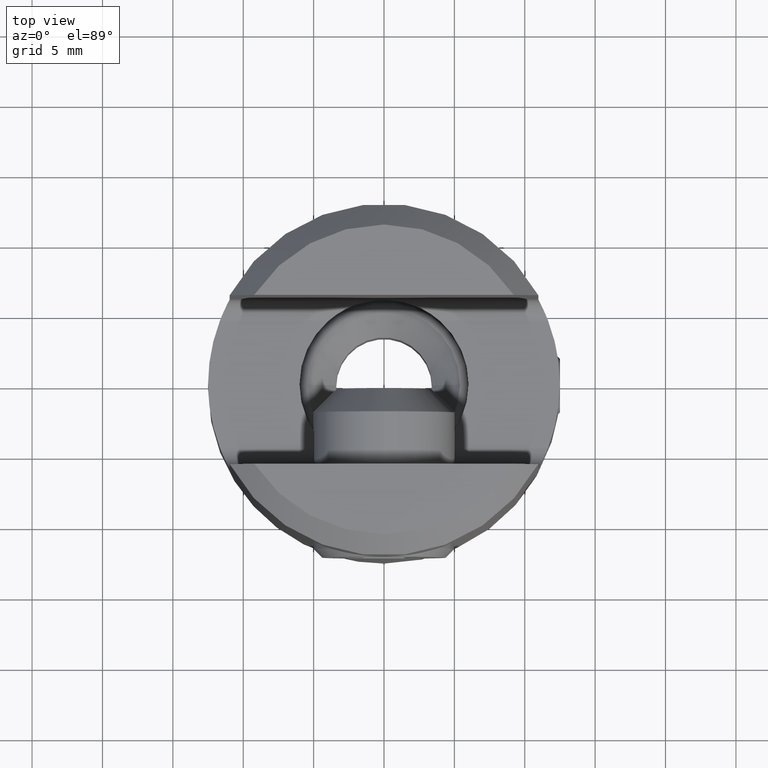
[diagram: clean part render]
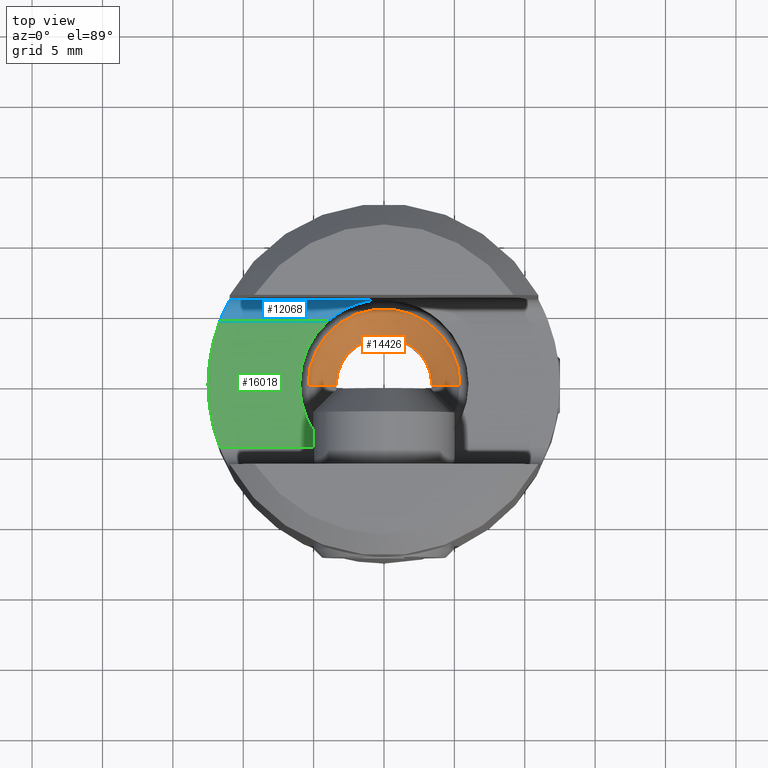
[diagram: same view with three faces highlighted in distinct colors, each labeled with its STEP entity id]
A machine part, top view with three faces highlighted in distinct colors.
Their STEP definitions:

[orange] entity #14426 — the highlighted conical surface has half-angle 45 deg.
#120 = LINE ( 'NONE', #12263, #13485 ) ;
#1706 = VERTEX_POINT ( 'NONE', #17645 ) ;
#2958 = ORIENTED_EDGE ( 'NONE', *, *, #13245, .F. ) ;
#5023 = VERTEX_POINT ( 'NONE', #7340 ) ;
#6390 = CARTESIAN_POINT ( 'NONE',  ( 0.000000000000000000, 0.000000000000000000, 3.749999999999997335 ) ) ;
#6521 = VERTEX_POINT ( 'NONE', #16989 ) ;
#7340 = CARTESIAN_POINT ( 'NONE',  ( -5.400000000000005684, 6.613092715395714369E-16, 5.749999999999997335 ) ) ;
#8348 = EDGE_CURVE ( 'NONE', #6521, #5023, #18417, .T. ) ;
#12263 = CARTESIAN_POINT ( 'NONE',  ( 5.400000000000005684, 0.000000000000000000, 5.749999999999997335 ) ) ;
#12441 = AXIS2_PLACEMENT_3D ( 'NONE', #6390, #31482, #13760 ) ;
#13035 = DIRECTION ( 'NONE',  ( -0.000000000000000000, -0.000000000000000000, 1.000000000000000000 ) ) ;
#13245 = EDGE_CURVE ( 'NONE', #1706, #23680, #24624, .T. ) ;
#13378 = VECTOR ( 'NONE', #15585, 1000.000000000000000 ) ;
#13485 = VECTOR ( 'NONE', #27518, 1000.000000000000000 ) ;
#13760 = DIRECTION ( 'NONE',  ( 1.000000000000000000, 0.000000000000000000, 0.000000000000000000 ) ) ;
#14020 = ORIENTED_EDGE ( 'NONE', *, *, #16436, .T. ) ;
#14426 = ADVANCED_FACE ( 'NONE', ( #20281 ), #15132, .F. ) ;
#15031 = ORIENTED_EDGE ( 'NONE', *, *, #8348, .T. ) ;
#15132 = CONICAL_SURFACE ( 'NONE', #18976, 5.400000000000005684, 0.7853981633974498333 ) ;
#15409 = EDGE_LOOP ( 'NONE', ( #30413, #2958, #14020, #15031 ) ) ;
#15557 = DIRECTION ( 'NONE',  ( 1.000000000000000000, 0.000000000000000000, 0.000000000000000000 ) ) ;
#15585 = DIRECTION ( 'NONE',  ( -0.7071067811865486830, 8.659560562354947649E-17, 0.7071067811865464625 ) ) ;
#16436 = EDGE_CURVE ( 'NONE', #1706, #6521, #120, .T. ) ;
#16989 = CARTESIAN_POINT ( 'NONE',  ( 5.400000000000005684, 0.000000000000000000, 5.749999999999997335 ) ) ;
#17645 = CARTESIAN_POINT ( 'NONE',  ( 3.399999999999999467, 0.000000000000000000, 3.749999999999997335 ) ) ;
#17851 = CARTESIAN_POINT ( 'NONE',  ( -3.399999999999999467, 5.388445916248357957E-16, 3.749999999999997335 ) ) ;
#18417 = CIRCLE ( 'NONE', #21698, 5.400000000000005684 ) ;
#18976 = AXIS2_PLACEMENT_3D ( 'NONE', #25335, #30297, #15557 ) ;
#20281 = FACE_OUTER_BOUND ( 'NONE', #15409, .T. ) ;
#21260 = LINE ( 'NONE', #25802, #13378 ) ;
#21698 = AXIS2_PLACEMENT_3D ( 'NONE', #25568, #13035, #30639 ) ;
#23680 = VERTEX_POINT ( 'NONE', #17851 ) ;
#24624 = CIRCLE ( 'NONE', #12441, 3.399999999999999467 ) ;
#25335 = CARTESIAN_POINT ( 'NONE',  ( 0.000000000000000000, 0.000000000000000000, 5.749999999999997335 ) ) ;
#25568 = CARTESIAN_POINT ( 'NONE',  ( 0.000000000000000000, 0.000000000000000000, 5.749999999999997335 ) ) ;
#25802 = CARTESIAN_POINT ( 'NONE',  ( -5.400000000000005684, 6.613092715395714369E-16, 5.749999999999997335 ) ) ;
#27518 = DIRECTION ( 'NONE',  ( 0.7071067811865486830, 0.000000000000000000, 0.7071067811865464625 ) ) ;
#30297 = DIRECTION ( 'NONE',  ( -0.000000000000000000, -0.000000000000000000, 1.000000000000000000 ) ) ;
#30413 = ORIENTED_EDGE ( 'NONE', *, *, #31816, .F. ) ;
#30639 = DIRECTION ( 'NONE',  ( 1.000000000000000000, 0.000000000000000000, 0.000000000000000000 ) ) ;
#31482 = DIRECTION ( 'NONE',  ( -0.000000000000000000, -0.000000000000000000, 1.000000000000000000 ) ) ;
#31816 = EDGE_CURVE ( 'NONE', #23680, #5023, #21260, .T. ) ;

[blue] entity #12068 — the highlighted cylindrical surface (edge-blend (fillet) strip) has radius 1.5 mm, axis along (1, 0, 0).
#283 = ORIENTED_EDGE ( 'NONE', *, *, #3916, .F. ) ;
#496 = CARTESIAN_POINT ( 'NONE',  ( -0.3457592274710205027, 5.992519182229584906, -3.672879875943233952 ) ) ;
#1646 = B_SPLINE_CURVE_WITH_KNOTS ( 'NONE', 3,
 ( #11290, #18961, #3876, #23595, #26518, #16309, #8532, #3549, #21396, #26097, #28850, #11170, #11500, #23809 ),
 .UNSPECIFIED., .F., .F.,
 ( 4, 2, 2, 2, 2, 2, 4 ),
 ( 0.000000000000000000, 0.0006151161243087470767, 0.001230232248617494153, 0.001537790310771869210, 0.001845348372926244483, 0.002152906435080619539, 0.002460464497234994812 ),
 .UNSPECIFIED. ) ;
#2131 = B_SPLINE_CURVE_WITH_KNOTS ( 'NONE', 3,
 ( #8215, #22414, #24908, #9873, #3131, #4872, #28091, #13042, #30649, #496, #23174, #3650 ),
 .UNSPECIFIED., .F., .F.,
 ( 4, 2, 2, 2, 2, 4 ),
 ( 1.939479807224432123E-18, 0.001154365541291740892, 0.002308731082583479616, 0.003463096623875218556, 0.004040279394521088460, 0.004617462165166957497 ),
 .UNSPECIFIED. ) ;
#2455 = EDGE_CURVE ( 'NONE', #14054, #15091, #9603, .T. ) ;
#3131 = CARTESIAN_POINT ( 'NONE',  ( -2.389261835749179497, 5.515299165714085738, -4.619919010404819559 ) ) ;
#3549 = CARTESIAN_POINT ( 'NONE',  ( -11.08050474110093297, 5.785881309646044635, -4.278563079836198213 ) ) ;
#3650 = CARTESIAN_POINT ( 'NONE',  ( 0.000000000000000000, 6.000000000000000000, -3.499999999999999556 ) ) ;
#3876 = CARTESIAN_POINT ( 'NONE',  ( -11.50910958810004381, 4.881422430154224834, -4.963323838012638767 ) ) ;
#3916 = EDGE_CURVE ( 'NONE', #12203, #14054, #1646, .T. ) ;
#4872 = CARTESIAN_POINT ( 'NONE',  ( -1.719342870158561798, 5.759423330675472741, -4.336004700893561825 ) ) ;
#6968 = CARTESIAN_POINT ( 'NONE',  ( -3.968626966596886962, 4.500000000000000888, -4.999999999999999112 ) ) ;
#8215 = CARTESIAN_POINT ( 'NONE',  ( -3.968626966596886962, 4.500000000000000888, -4.999999999999999112 ) ) ;
#8532 = CARTESIAN_POINT ( 'NONE',  ( -11.13854122013244741, 5.673350626770930383, -4.439627329550028811 ) ) ;
#9224 = DIRECTION ( 'NONE',  ( 0.000000000000000000, 0.000000000000000000, -1.000000000000000000 ) ) ;
#9603 = LINE ( 'NONE', #17701, #20984 ) ;
#9873 = CARTESIAN_POINT ( 'NONE',  ( -2.718072507772709923, 5.362287015771874721, -4.745848409250905675 ) ) ;
#11170 = CARTESIAN_POINT ( 'NONE',  ( -10.97193991948220138, 5.988915443947516515, -3.708765188068190000 ) ) ;
#11290 = CARTESIAN_POINT ( 'NONE',  ( -11.66190378969060149, 4.500000000000000888, -4.999999999999997335 ) ) ;
#11500 = CARTESIAN_POINT ( 'NONE',  ( -10.96585609973065445, 6.000000000000000000, -3.604328670593471173 ) ) ;
#12068 = ADVANCED_FACE ( 'NONE', ( #26161 ), #18694, .F. ) ;
#12184 = CARTESIAN_POINT ( 'NONE',  ( 0.000000000000000000, 4.500000000000000888, -4.999999999999999112 ) ) ;
#12203 = VERTEX_POINT ( 'NONE', #31972 ) ;
#12715 = ORIENTED_EDGE ( 'NONE', *, *, #2455, .F. ) ;
#12866 = AXIS2_PLACEMENT_3D ( 'NONE', #24405, #21871, #9224 ) ;
#13042 = CARTESIAN_POINT ( 'NONE',  ( -0.8615478868297075099, 5.940372438374049935, -3.927871978965056243 ) ) ;
#13070 = CARTESIAN_POINT ( 'NONE',  ( -10.96585609973065623, 6.000000000000000000, -3.499999999999996003 ) ) ;
#14054 = VERTEX_POINT ( 'NONE', #13070 ) ;
#15091 = VERTEX_POINT ( 'NONE', #25314 ) ;
#16309 = CARTESIAN_POINT ( 'NONE',  ( -11.17064239995578490, 5.610069605577518992, -4.513525175028263448 ) ) ;
#16334 = VERTEX_POINT ( 'NONE', #6968 ) ;
#17214 = DIRECTION ( 'NONE',  ( -1.000000000000000000, -0.000000000000000000, 0.000000000000000000 ) ) ;
#17701 = CARTESIAN_POINT ( 'NONE',  ( -10.96585609973065623, 6.000000000000000000, -3.499999999999996003 ) ) ;
#18694 = CYLINDRICAL_SURFACE ( 'NONE', #12866, 1.499999999999999556 ) ;
#18961 = CARTESIAN_POINT ( 'NONE',  ( -11.58701421025937783, 4.694078904483859560, -4.999999999999999112 ) ) ;
#20984 = VECTOR ( 'NONE', #22884, 1000.000000000000000 ) ;
#21160 = EDGE_LOOP ( 'NONE', ( #32423, #21508, #12715, #283 ) ) ;
#21396 = CARTESIAN_POINT ( 'NONE',  ( -11.05428633293599638, 5.835651326023887364, -4.190079855651604568 ) ) ;
#21508 = ORIENTED_EDGE ( 'NONE', *, *, #28378, .T. ) ;
#21871 = DIRECTION ( 'NONE',  ( 1.000000000000000000, 0.000000000000000000, -0.000000000000000000 ) ) ;
#22414 = CARTESIAN_POINT ( 'NONE',  ( -3.675905225379418440, 4.758156310201076877, -4.999999999999995559 ) ) ;
#22884 = DIRECTION ( 'NONE',  ( 1.000000000000000000, 0.000000000000000000, -0.000000000000000000 ) ) ;
#22958 = VECTOR ( 'NONE', #17214, 1000.000000000000000 ) ;
#23174 = CARTESIAN_POINT ( 'NONE',  ( -0.1720828153580829523, 6.000000000000001776, -3.586041235596761911 ) ) ;
#23595 = CARTESIAN_POINT ( 'NONE',  ( -11.35153951942210426, 5.237407659473080734, -4.820238489391681647 ) ) ;
#23809 = CARTESIAN_POINT ( 'NONE',  ( -10.96585609973065623, 6.000000000000000000, -3.499999999999996003 ) ) ;
#24405 = CARTESIAN_POINT ( 'NONE',  ( -10.96585609973065623, 4.500000000000000888, -3.499999999999996003 ) ) ;
#24908 = CARTESIAN_POINT ( 'NONE',  ( -3.367710864229600531, 4.980016438926222477, -4.937101727353483405 ) ) ;
#25314 = CARTESIAN_POINT ( 'NONE',  ( 0.000000000000000000, 6.000000000000000000, -3.499999999999999556 ) ) ;
#26097 = CARTESIAN_POINT ( 'NONE',  ( -11.01148464564136731, 5.916018815746308057, -4.005039983900222644 ) ) ;
#26161 = FACE_OUTER_BOUND ( 'NONE', #21160, .T. ) ;
#26518 = CARTESIAN_POINT ( 'NONE',  ( -11.27476220471208990, 5.399469201287617537, -4.716102953908867690 ) ) ;
#28091 = CARTESIAN_POINT ( 'NONE',  ( -1.375867837165913432, 5.850482507129773246, -4.176155133368659733 ) ) ;
#28332 = EDGE_CURVE ( 'NONE', #16334, #12203, #30425, .T. ) ;
#28378 = EDGE_CURVE ( 'NONE', #16334, #15091, #2131, .T. ) ;
#28850 = CARTESIAN_POINT ( 'NONE',  ( -10.99481255590329098, 5.946820213528531518, -3.908856176056842546 ) ) ;
#30425 = LINE ( 'NONE', #12184, #22958 ) ;
#30649 = CARTESIAN_POINT ( 'NONE',  ( -0.6899298148956094501, 5.962703450892806067, -3.843510662972326131 ) ) ;
#31972 = CARTESIAN_POINT ( 'NONE',  ( -11.66190378969060149, 4.500000000000000888, -4.999999999999997335 ) ) ;
#32423 = ORIENTED_EDGE ( 'NONE', *, *, #28332, .F. ) ;

[green] entity #16018 — the highlighted planar face has unit normal (0, 0, 1).
#186 = ORIENTED_EDGE ( 'NONE', *, *, #29980, .F. ) ;
#377 = ORIENTED_EDGE ( 'NONE', *, *, #8824, .F. ) ;
#458 = CARTESIAN_POINT ( 'NONE',  ( 0.000000000000000000, 0.000000000000000000, -4.999999999999999112 ) ) ;
#934 = DIRECTION ( 'NONE',  ( -0.000000000000000000, -0.000000000000000000, -1.000000000000000000 ) ) ;
#1084 = CIRCLE ( 'NONE', #26898, 12.50000000000000000 ) ;
#2368 = ORIENTED_EDGE ( 'NONE', *, *, #21060, .T. ) ;
#2515 = VERTEX_POINT ( 'NONE', #26450 ) ;
#2859 = EDGE_LOOP ( 'NONE', ( #19412, #26356, #13273, #377, #2368, #186 ) ) ;
#2957 = VERTEX_POINT ( 'NONE', #7666 ) ;
#3126 = AXIS2_PLACEMENT_3D ( 'NONE', #5465, #30665, #15474 ) ;
#3469 = DIRECTION ( 'NONE',  ( 1.000000000000000000, 0.000000000000000000, 0.000000000000000000 ) ) ;
#4179 = AXIS2_PLACEMENT_3D ( 'NONE', #458, #17959, #27949 ) ;
#5465 = CARTESIAN_POINT ( 'NONE',  ( 0.000000000000000000, 0.000000000000000000, -4.999999999999999112 ) ) ;
#5794 = CARTESIAN_POINT ( 'NONE',  ( 0.000000000000000000, 0.000000000000000000, -4.999999999999997335 ) ) ;
#5847 = LINE ( 'NONE', #6323, #31841 ) ;
#6323 = CARTESIAN_POINT ( 'NONE',  ( 0.000000000000000000, -4.500000000000000888, -4.999999999999999112 ) ) ;
#6968 = CARTESIAN_POINT ( 'NONE',  ( -3.968626966596886962, 4.500000000000000888, -4.999999999999999112 ) ) ;
#7407 = CIRCLE ( 'NONE', #3126, 6.000000000000000888 ) ;
#7666 = CARTESIAN_POINT ( 'NONE',  ( -11.66190378969060149, -4.500000000000000888, -4.999999999999997335 ) ) ;
#8000 = EDGE_CURVE ( 'NONE', #16334, #10510, #7407, .T. ) ;
#8824 = EDGE_CURVE ( 'NONE', #2957, #21596, #1084, .T. ) ;
#10108 = PLANE ( 'NONE',  #32466 ) ;
#10225 = EDGE_CURVE ( 'NONE', #21596, #12203, #28572, .T. ) ;
#10510 = VERTEX_POINT ( 'NONE', #22613 ) ;
#11101 = CIRCLE ( 'NONE', #4179, 6.000000000000000888 ) ;
#12184 = CARTESIAN_POINT ( 'NONE',  ( 0.000000000000000000, 4.500000000000000888, -4.999999999999999112 ) ) ;
#12203 = VERTEX_POINT ( 'NONE', #31972 ) ;
#13273 = ORIENTED_EDGE ( 'NONE', *, *, #10225, .F. ) ;
#15474 = DIRECTION ( 'NONE',  ( 1.000000000000000000, 0.000000000000000000, 0.000000000000000000 ) ) ;
#16018 = ADVANCED_FACE ( 'NONE', ( #19841 ), #10108, .T. ) ;
#16334 = VERTEX_POINT ( 'NONE', #6968 ) ;
#17214 = DIRECTION ( 'NONE',  ( -1.000000000000000000, -0.000000000000000000, 0.000000000000000000 ) ) ;
#17959 = DIRECTION ( 'NONE',  ( 0.000000000000000000, 0.000000000000000000, 1.000000000000000000 ) ) ;
#19412 = ORIENTED_EDGE ( 'NONE', *, *, #8000, .F. ) ;
#19841 = FACE_OUTER_BOUND ( 'NONE', #2859, .T. ) ;
#20452 = CARTESIAN_POINT ( 'NONE',  ( 0.000000000000000000, 0.000000000000000000, -4.999999999999999112 ) ) ;
#20584 = DIRECTION ( 'NONE',  ( 1.000000000000000000, 3.552713678800500929E-15, 0.000000000000000000 ) ) ;
#21060 = EDGE_CURVE ( 'NONE', #2957, #2515, #5847, .T. ) ;
#21596 = VERTEX_POINT ( 'NONE', #31689 ) ;
#22613 = CARTESIAN_POINT ( 'NONE',  ( -6.000000000000000888, 0.000000000000000000, -4.999999999999999112 ) ) ;
#22745 = DIRECTION ( 'NONE',  ( 0.000000000000000000, 0.000000000000000000, 1.000000000000000000 ) ) ;
#22958 = VECTOR ( 'NONE', #17214, 1000.000000000000000 ) ;
#23403 = DIRECTION ( 'NONE',  ( -0.000000000000000000, -0.000000000000000000, -1.000000000000000000 ) ) ;
#26356 = ORIENTED_EDGE ( 'NONE', *, *, #28332, .T. ) ;
#26450 = CARTESIAN_POINT ( 'NONE',  ( -3.968626966596888739, -4.500000000000000888, -4.999999999999999112 ) ) ;
#26898 = AXIS2_PLACEMENT_3D ( 'NONE', #5794, #23403, #20584 ) ;
#27455 = DIRECTION ( 'NONE',  ( 1.000000000000000000, 0.000000000000000000, -0.000000000000000000 ) ) ;
#27783 = AXIS2_PLACEMENT_3D ( 'NONE', #31076, #934, #3469 ) ;
#27949 = DIRECTION ( 'NONE',  ( 1.000000000000000000, 0.000000000000000000, 0.000000000000000000 ) ) ;
#28332 = EDGE_CURVE ( 'NONE', #16334, #12203, #30425, .T. ) ;
#28572 = CIRCLE ( 'NONE', #27783, 12.50000000000000000 ) ;
#28866 = DIRECTION ( 'NONE',  ( 1.000000000000000000, -0.000000000000000000, -0.000000000000000000 ) ) ;
#29980 = EDGE_CURVE ( 'NONE', #10510, #2515, #11101, .T. ) ;
#30425 = LINE ( 'NONE', #12184, #22958 ) ;
#30665 = DIRECTION ( 'NONE',  ( 0.000000000000000000, 0.000000000000000000, 1.000000000000000000 ) ) ;
#31076 = CARTESIAN_POINT ( 'NONE',  ( 0.000000000000000000, 0.000000000000000000, -4.999999999999997335 ) ) ;
#31689 = CARTESIAN_POINT ( 'NONE',  ( -12.50000000000000000, 0.000000000000000000, -4.999999999999997335 ) ) ;
#31841 = VECTOR ( 'NONE', #28866, 1000.000000000000000 ) ;
#31972 = CARTESIAN_POINT ( 'NONE',  ( -11.66190378969060149, 4.500000000000000888, -4.999999999999997335 ) ) ;
#32466 = AXIS2_PLACEMENT_3D ( 'NONE', #20452, #22745, #27455 ) ;